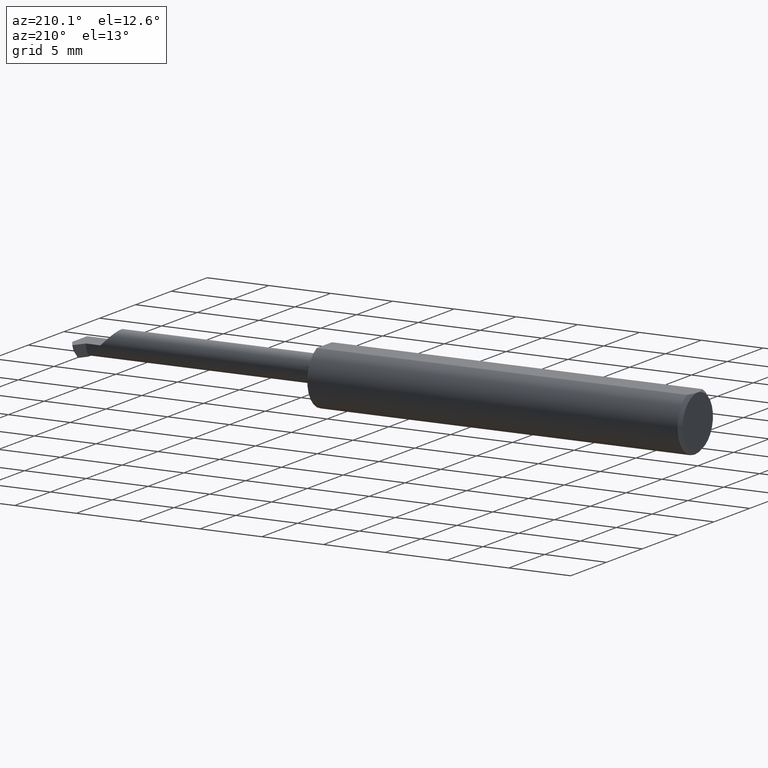
[diagram: clean part render]
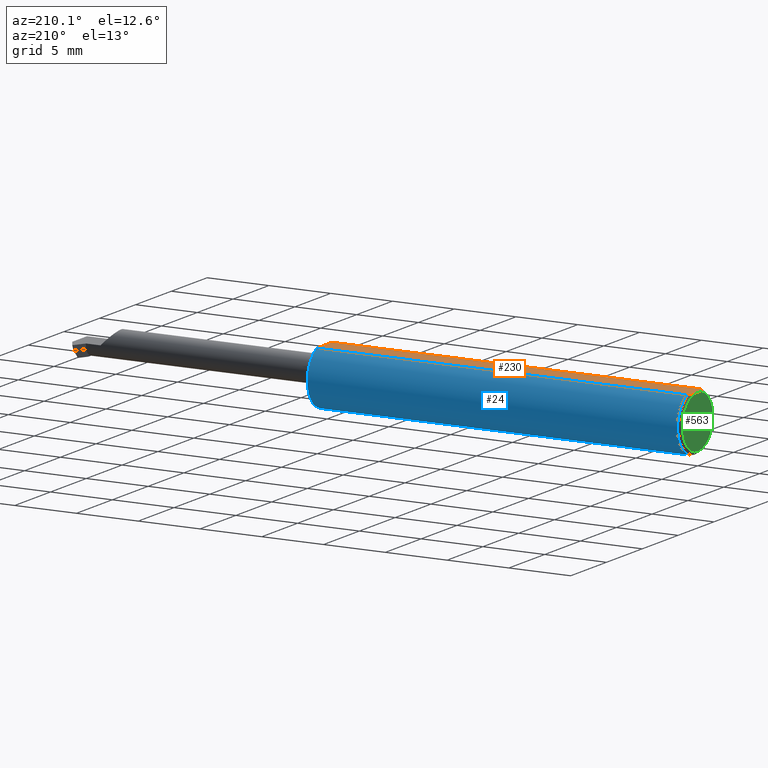
[diagram: same view with three faces highlighted in distinct colors, each labeled with its STEP entity id]
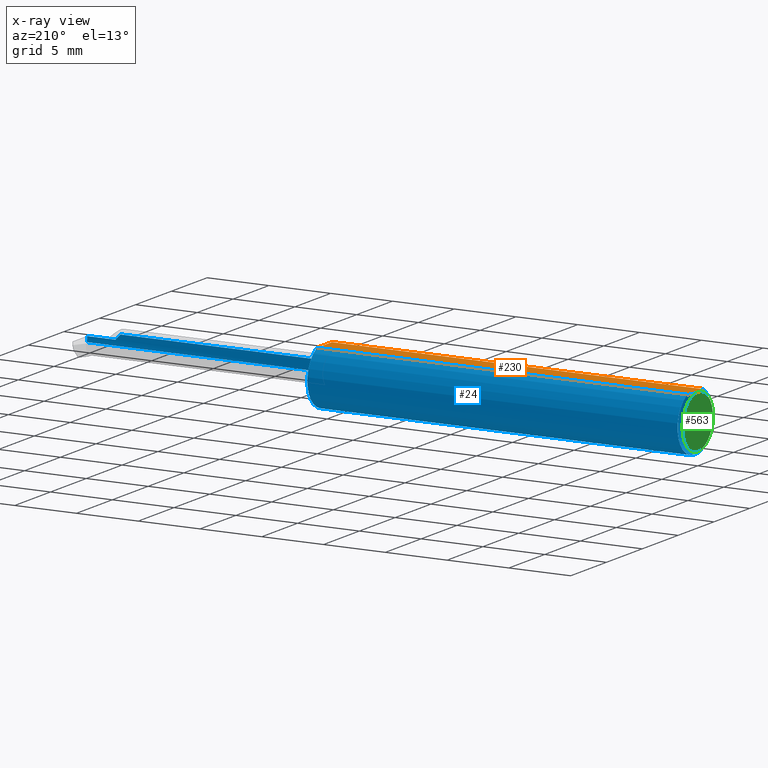
[diagram: x-ray of the same camera — body ghosted, the three highlighted faces saturated]
A machine part, auxiliary view with three faces highlighted in distinct colors.
The next image is the same camera in x-ray (body ghosted, the three faces saturated) — at least one of them is partly hidden behind the body in this view.
Their STEP definitions:

[orange] entity #230 — the highlighted planar face has unit normal (0, 0, 1).
#4 = VERTEX_POINT ( 'NONE', #185 ) ;
#28 = CARTESIAN_POINT ( 'NONE',  ( 0.000000000000000000, 0.000000000000000000, 0.08359999999999992437 ) ) ;
#58 = ORIENTED_EDGE ( 'NONE', *, *, #274, .F. ) ;
#80 = CARTESIAN_POINT ( 'NONE',  ( 0.009999999999999877043, 0.04209513035969860567, 0.08359999999999989662 ) ) ;
#103 = LINE ( 'NONE', #664, #374 ) ;
#107 = EDGE_CURVE ( 'NONE', #487, #604, #179, .T. ) ;
#150 = EDGE_CURVE ( 'NONE', #252, #604, #297, .T. ) ;
#179 = LINE ( 'NONE', #796, #507 ) ;
#185 = CARTESIAN_POINT ( 'NONE',  ( 1.189999999999999947, -0.04209513035969859179, 0.08359999999999992437 ) ) ;
#194 = ORIENTED_EDGE ( 'NONE', *, *, #376, .T. ) ;
#198 = PLANE ( 'NONE',  #657 ) ;
#202 = CARTESIAN_POINT ( 'NONE',  ( 0.000000000000000000, 0.000000000000000000, 0.08359999999999992437 ) ) ;
#209 = CARTESIAN_POINT ( 'NONE',  ( 0.009999999999999877043, 0.04209513035969860567, 0.08359999999999989662 ) ) ;
#221 = LINE ( 'NONE', #469, #621 ) ;
#230 = ADVANCED_FACE ( 'NONE', ( #316 ), #198, .T. ) ;
#252 = VERTEX_POINT ( 'NONE', #202 ) ;
#265 = CARTESIAN_POINT ( 'NONE',  ( 0.007036739039485557373, 0.03550621559607056860, 0.08359999999999992437 ) ) ;
#274 = EDGE_CURVE ( 'NONE', #792, #252, #326, .T. ) ;
#276 = CARTESIAN_POINT ( 'NONE',  ( 0.009999999999999877043, -0.04209513035969860567, 0.08359999999999989662 ) ) ;
#297 = B_SPLINE_CURVE_WITH_KNOTS ( 'NONE', 3,
 ( #700, #703, #323, #706, #265, #209 ),
 .UNSPECIFIED., .F., .F.,
 ( 4, 2, 4 ),
 ( 0.001744210492668867019, 0.002295110172257195866, 0.002846009851845524713 ),
 .UNSPECIFIED. ) ;
#316 = FACE_OUTER_BOUND ( 'NONE', #366, .T. ) ;
#323 = CARTESIAN_POINT ( 'NONE',  ( 0.0009807498324115896879, 0.01453516766257749275, 0.08359999999999992437 ) ) ;
#326 = B_SPLINE_CURVE_WITH_KNOTS ( 'NONE', 3,
 ( #718, #584, #720, #28 ),
 .UNSPECIFIED., .F., .F.,
 ( 4, 4 ),
 ( 0.0006429768761302141322, 0.001744210492668867019 ),
 .UNSPECIFIED. ) ;
#366 = EDGE_LOOP ( 'NONE', ( #194, #759, #475, #554, #58 ) ) ;
#374 = VECTOR ( 'NONE', #777, 39.37007874015748143 ) ;
#376 = EDGE_CURVE ( 'NONE', #792, #4, #221, .T. ) ;
#405 = DIRECTION ( 'NONE',  ( 1.000000000000000000, 0.000000000000000000, 0.000000000000000000 ) ) ;
#410 = EDGE_CURVE ( 'NONE', #4, #487, #103, .T. ) ;
#438 = CARTESIAN_POINT ( 'NONE',  ( 2.191425808082400728, 0.09360000000000001652, 0.08359999999999992437 ) ) ;
#469 = CARTESIAN_POINT ( 'NONE',  ( 0.000000000000000000, -0.04209513035969860567, 0.08359999999999989662 ) ) ;
#475 = ORIENTED_EDGE ( 'NONE', *, *, #107, .T. ) ;
#481 = DIRECTION ( 'NONE',  ( -1.000000000000000000, -0.000000000000000000, -0.000000000000000000 ) ) ;
#487 = VERTEX_POINT ( 'NONE', #610 ) ;
#504 = DIRECTION ( 'NONE',  ( 1.000000000000000000, 0.000000000000000000, -0.000000000000000000 ) ) ;
#507 = VECTOR ( 'NONE', #481, 39.37007874015748143 ) ;
#554 = ORIENTED_EDGE ( 'NONE', *, *, #150, .F. ) ;
#571 = DIRECTION ( 'NONE',  ( 0.000000000000000000, 0.000000000000000000, 1.000000000000000000 ) ) ;
#584 = CARTESIAN_POINT ( 'NONE',  ( 0.004072204388638599876, -0.02891446873729323561, 0.08359999999999992437 ) ) ;
#604 = VERTEX_POINT ( 'NONE', #80 ) ;
#610 = CARTESIAN_POINT ( 'NONE',  ( 1.189999999999999947, 0.04209513035969860567, 0.08359999999999989662 ) ) ;
#621 = VECTOR ( 'NONE', #405, 39.37007874015748143 ) ;
#657 = AXIS2_PLACEMENT_3D ( 'NONE', #438, #571, #504 ) ;
#664 = CARTESIAN_POINT ( 'NONE',  ( 1.189999999999999947, 0.09359999999999996101, 0.08359999999999992437 ) ) ;
#700 = CARTESIAN_POINT ( 'NONE',  ( 0.000000000000000000, 0.000000000000000000, 0.08359999999999992437 ) ) ;
#703 = CARTESIAN_POINT ( 'NONE',  ( -2.346264590017496984E-16, 0.007317304829308919449, 0.08359999999999995213 ) ) ;
#706 = CARTESIAN_POINT ( 'NONE',  ( 0.004492168231814527152, 0.02859366993844192698, 0.08359999999999991049 ) ) ;
#718 = CARTESIAN_POINT ( 'NONE',  ( 0.009999999999999877043, -0.04209513035969860567, 0.08359999999999989662 ) ) ;
#720 = CARTESIAN_POINT ( 'NONE',  ( -2.262195879907695790E-16, -0.01462709520273676109, 0.08359999999999992437 ) ) ;
#759 = ORIENTED_EDGE ( 'NONE', *, *, #410, .T. ) ;
#777 = DIRECTION ( 'NONE',  ( -5.600139467623446789E-17, 1.000000000000000000, 0.000000000000000000 ) ) ;
#792 = VERTEX_POINT ( 'NONE', #276 ) ;
#796 = CARTESIAN_POINT ( 'NONE',  ( 0.000000000000000000, 0.04209513035969860567, 0.08359999999999989662 ) ) ;

[blue] entity #24 — the highlighted cylindrical surface (edge-blend (fillet) strip) has radius 2.3774 mm, axis along (-1, -0, -0).
#4 = VERTEX_POINT ( 'NONE', #185 ) ;
#12 = ORIENTED_EDGE ( 'NONE', *, *, #284, .F. ) ;
#24 = ADVANCED_FACE ( 'NONE', ( #242 ), #122, .T. ) ;
#32 = CARTESIAN_POINT ( 'NONE',  ( 0.009999999999999877043, 0.000000000000000000, -0.09360000000000001652 ) ) ;
#33 = CARTESIAN_POINT ( 'NONE',  ( 2.999519565323725069E-32, -0.09359999999999998876, 2.449293598294709866E-16 ) ) ;
#37 = CARTESIAN_POINT ( 'NONE',  ( 1.189999999999999947, 0.000000000000000000, 0.000000000000000000 ) ) ;
#53 = CARTESIAN_POINT ( 'NONE',  ( 1.206246254951216068, -0.09087486346021456107, 0.02250610835616446287 ) ) ;
#59 = CARTESIAN_POINT ( 'NONE',  ( 1.204665360541867791, -0.09032542640524117428, -0.02464512177151387609 ) ) ;
#60 = AXIS2_PLACEMENT_3D ( 'NONE', #127, #799, #378 ) ;
#61 = CARTESIAN_POINT ( 'NONE',  ( 1.194091173271815132, -0.08239225417103622495, 0.04468952776629322998 ) ) ;
#75 = EDGE_CURVE ( 'NONE', #101, #439, #719, .T. ) ;
#80 = CARTESIAN_POINT ( 'NONE',  ( 0.009999999999999877043, 0.04209513035969860567, 0.08359999999999989662 ) ) ;
#97 = CARTESIAN_POINT ( 'NONE',  ( 0.009999999999999877043, 0.000000000000000000, 0.000000000000000000 ) ) ;
#101 = VERTEX_POINT ( 'NONE', #478 ) ;
#107 = EDGE_CURVE ( 'NONE', #487, #604, #179, .T. ) ;
#108 = DIRECTION ( 'NONE',  ( 1.000000000000000000, 5.600139467623446789E-17, 0.000000000000000000 ) ) ;
#111 = CARTESIAN_POINT ( 'NONE',  ( 1.893146287756234614, -0.09207014925373130376, 0.01685371224376530641 ) ) ;
#117 = CARTESIAN_POINT ( 'NONE',  ( 1.192599756579037162, -0.07984340602545507426, -0.04912629365152888783 ) ) ;
#122 = CYLINDRICAL_SURFACE ( 'NONE', #60, 0.09360000000000001652 ) ;
#127 = CARTESIAN_POINT ( 'NONE',  ( 0.000000000000000000, 0.000000000000000000, 0.000000000000000000 ) ) ;
#128 = CIRCLE ( 'NONE', #493, 0.09360000000000001652 ) ;
#129 = ORIENTED_EDGE ( 'NONE', *, *, #376, .F. ) ;
#130 = CIRCLE ( 'NONE', #269, 0.09360000000000001652 ) ;
#146 = ORIENTED_EDGE ( 'NONE', *, *, #485, .T. ) ;
#151 = DIRECTION ( 'NONE',  ( 1.000000000000000000, 5.600139467623446789E-17, 0.000000000000000000 ) ) ;
#156 = CARTESIAN_POINT ( 'NONE',  ( 1.583607695154586548, -0.09207014925373126213, 0.01685371224376544519 ) ) ;
#159 = CARTESIAN_POINT ( 'NONE',  ( 0.009999999999999877043, 0.000000000000000000, 0.000000000000000000 ) ) ;
#167 = CIRCLE ( 'NONE', #582, 0.09360000000000001652 ) ;
#176 = ORIENTED_EDGE ( 'NONE', *, *, #359, .F. ) ;
#179 = LINE ( 'NONE', #796, #507 ) ;
#185 = CARTESIAN_POINT ( 'NONE',  ( 1.189999999999999947, -0.04209513035969859179, 0.08359999999999992437 ) ) ;
#186 = VERTEX_POINT ( 'NONE', #213 ) ;
#188 = DIRECTION ( 'NONE',  ( 0.000000000000000000, 1.000000000000000000, 0.000000000000000000 ) ) ;
#189 = CARTESIAN_POINT ( 'NONE',  ( 1.212341178892590854, -0.09198016210675416526, 0.01735291095036402970 ) ) ;
#190 = ORIENTED_EDGE ( 'NONE', *, *, #358, .T. ) ;
#191 = CARTESIAN_POINT ( 'NONE',  ( 1.200331455114174828, -0.08838398833671959332, -0.03113919291468824138 ) ) ;
#199 = ORIENTED_EDGE ( 'NONE', *, *, #335, .T. ) ;
#207 = AXIS2_PLACEMENT_3D ( 'NONE', #159, #350, #775 ) ;
#213 = CARTESIAN_POINT ( 'NONE',  ( 2.000000000000000000, -0.09360000000000001652, 0.000000000000000000 ) ) ;
#221 = LINE ( 'NONE', #469, #621 ) ;
#242 = FACE_OUTER_BOUND ( 'NONE', #259, .T. ) ;
#246 = CARTESIAN_POINT ( 'NONE',  ( 1.190533642810113646, -0.07379783313327901995, 0.05781434694793449042 ) ) ;
#248 = CARTESIAN_POINT ( 'NONE',  ( 1.213627452150747077, -0.09207014925373124825, -0.01685371224376555968 ) ) ;
#259 = EDGE_LOOP ( 'NONE', ( #176, #373, #199, #146, #12, #733, #659, #129, #348, #190, #767, #564, #663 ) ) ;
#269 = AXIS2_PLACEMENT_3D ( 'NONE', #484, #108, #188 ) ;
#276 = CARTESIAN_POINT ( 'NONE',  ( 0.009999999999999877043, -0.04209513035969860567, 0.08359999999999989662 ) ) ;
#283 = LINE ( 'NONE', #156, #761 ) ;
#284 = EDGE_CURVE ( 'NONE', #439, #474, #283, .T. ) ;
#298 = CARTESIAN_POINT ( 'NONE',  ( 1.189999999999999947, -0.07042526556309521013, -0.06188820058547968295 ) ) ;
#299 = CARTESIAN_POINT ( 'NONE',  ( 1.189999999999999947, -0.06665037313432835286, 0.06571672360255648160 ) ) ;
#303 = CARTESIAN_POINT ( 'NONE',  ( 1.204680805881167549, -0.09033173497866232859, 0.02462299273440486311 ) ) ;
#307 = CARTESIAN_POINT ( 'NONE',  ( 1.214999999999999858, -0.09207014925373123437, 0.01685371224376555968 ) ) ;
#310 = CARTESIAN_POINT ( 'NONE',  ( 1.213637246768939582, -0.09207014925426143526, 0.01685371224086983782 ) ) ;
#328 = AXIS2_PLACEMENT_3D ( 'NONE', #97, #411, #649 ) ;
#333 = CARTESIAN_POINT ( 'NONE',  ( 1.189999999999999947, -0.06665037313432835286, -0.06571672360255648160 ) ) ;
#335 = EDGE_CURVE ( 'NONE', #186, #460, #532, .T. ) ;
#344 = CARTESIAN_POINT ( 'NONE',  ( 1.583607695154586548, -0.09207014925373126213, -0.01685371224376544519 ) ) ;
#348 = ORIENTED_EDGE ( 'NONE', *, *, #685, .T. ) ;
#350 = DIRECTION ( 'NONE',  ( 1.000000000000000000, 0.000000000000000000, 0.000000000000000000 ) ) ;
#357 = CARTESIAN_POINT ( 'NONE',  ( 1.214999999999999858, -0.09207014925373122050, -0.01685371224376561866 ) ) ;
#358 = EDGE_CURVE ( 'NONE', #783, #604, #551, .T. ) ;
#359 = EDGE_CURVE ( 'NONE', #770, #698, #716, .T. ) ;
#360 = CARTESIAN_POINT ( 'NONE',  ( 1.197959848388074677, -0.08665969772256711112, 0.03571742193933133414 ) ) ;
#364 = CARTESIAN_POINT ( 'NONE',  ( 1.200323772047401150, -0.08838176252376915565, 0.03114868400121304989 ) ) ;
#372 = CARTESIAN_POINT ( 'NONE',  ( 1.212324523699173762, -0.09197884972478911902, -0.01736005722475516058 ) ) ;
#373 = ORIENTED_EDGE ( 'NONE', *, *, #516, .T. ) ;
#376 = EDGE_CURVE ( 'NONE', #792, #4, #221, .T. ) ;
#378 = DIRECTION ( 'NONE',  ( 0.000000000000000000, 0.000000000000000000, 1.000000000000000000 ) ) ;
#405 = DIRECTION ( 'NONE',  ( 1.000000000000000000, 0.000000000000000000, 0.000000000000000000 ) ) ;
#411 = DIRECTION ( 'NONE',  ( 1.000000000000000000, 0.000000000000000000, 0.000000000000000000 ) ) ;
#419 = VERTEX_POINT ( 'NONE', #333 ) ;
#421 = CARTESIAN_POINT ( 'NONE',  ( 1.904343558428414962, -0.09360000000000001652, 0.005656441571585563502 ) ) ;
#425 = CARTESIAN_POINT ( 'NONE',  ( 1.189999999999999947, -0.06665037313432835286, -0.06571672360255648160 ) ) ;
#428 = CARTESIAN_POINT ( 'NONE',  ( 1.910000000000000142, -0.09360000000000005815, 1.102182119232617911E-17 ) ) ;
#429 = CARTESIAN_POINT ( 'NONE',  ( 1.214999999999999858, -0.09207014925373123437, 0.01685371224376555968 ) ) ;
#433 = DIRECTION ( 'NONE',  ( 0.000000000000000000, 0.000000000000000000, 1.000000000000000000 ) ) ;
#439 = VERTEX_POINT ( 'NONE', #307 ) ;
#460 = VERTEX_POINT ( 'NONE', #677 ) ;
#469 = CARTESIAN_POINT ( 'NONE',  ( 0.000000000000000000, -0.04209513035969860567, 0.08359999999999989662 ) ) ;
#473 = CARTESIAN_POINT ( 'NONE',  ( 1.210040276532751591, -0.09170035127622436222, -0.01877567467121163056 ) ) ;
#474 = VERTEX_POINT ( 'NONE', #488 ) ;
#478 = CARTESIAN_POINT ( 'NONE',  ( 1.189999999999999947, -0.06665037313432835286, 0.06571672360255648160 ) ) ;
#481 = DIRECTION ( 'NONE',  ( -1.000000000000000000, -0.000000000000000000, -0.000000000000000000 ) ) ;
#484 = CARTESIAN_POINT ( 'NONE',  ( 1.189999999999999947, 0.000000000000000000, 0.000000000000000000 ) ) ;
#485 = EDGE_CURVE ( 'NONE', #460, #474, #492, .T. ) ;
#486 = CARTESIAN_POINT ( 'NONE',  ( 1.210061339936166602, -0.09170362580915412953, 0.01875949767692831546 ) ) ;
#487 = VERTEX_POINT ( 'NONE', #610 ) ;
#488 = CARTESIAN_POINT ( 'NONE',  ( 1.893146287756234614, -0.09207014925373130376, 0.01685371224376530641 ) ) ;
#492 =( BOUNDED_CURVE ( )  B_SPLINE_CURVE ( 3, ( #428, #421, #603, #111 ),
 .UNSPECIFIED., .F., .T. ) 
 B_SPLINE_CURVE_WITH_KNOTS ( ( 4, 4 ),
 ( 4.712388980384689674, 4.893437473578368113 ),
 .UNSPECIFIED. ) 
 CURVE ( )  GEOMETRIC_REPRESENTATION_ITEM ( )  RATIONAL_B_SPLINE_CURVE ( ( 1.000000000000000000, 0.9972703184196847204, 0.9972703184196847204, 1.000000000000000000 ) ) 
 REPRESENTATION_ITEM ( '' )  );
#493 = AXIS2_PLACEMENT_3D ( 'NONE', #37, #151, #593 ) ;
#507 = VECTOR ( 'NONE', #481, 39.37007874015748143 ) ;
#509 = EDGE_CURVE ( 'NONE', #698, #419, #692, .T. ) ;
#510 = VECTOR ( 'NONE', #589, 39.37007874015748143 ) ;
#516 = EDGE_CURVE ( 'NONE', #770, #186, #167, .T. ) ;
#525 = EDGE_CURVE ( 'NONE', #4, #101, #130, .T. ) ;
#526 = CARTESIAN_POINT ( 'NONE',  ( 1.214999999999999858, -0.09207014925373122050, -0.01685371224376561866 ) ) ;
#527 = DIRECTION ( 'NONE',  ( -1.000000000000000000, -5.600139467623446789E-17, -0.000000000000000000 ) ) ;
#532 = LINE ( 'NONE', #33, #510 ) ;
#551 = CIRCLE ( 'NONE', #207, 0.09360000000000001652 ) ;
#552 = CARTESIAN_POINT ( 'NONE',  ( 1.194085356245838003, -0.08239036684830199075, -0.04469806793346439711 ) ) ;
#564 = ORIENTED_EDGE ( 'NONE', *, *, #722, .F. ) ;
#582 = AXIS2_PLACEMENT_3D ( 'NONE', #795, #744, #433 ) ;
#589 = DIRECTION ( 'NONE',  ( -1.000000000000000000, -0.000000000000000000, -0.000000000000000000 ) ) ;
#593 = DIRECTION ( 'NONE',  ( 0.000000000000000000, 1.000000000000000000, 0.000000000000000000 ) ) ;
#603 = CARTESIAN_POINT ( 'NONE',  ( 1.898710277283381265, -0.09308865393932079513, 0.01128972271661901269 ) ) ;
#604 = VERTEX_POINT ( 'NONE', #80 ) ;
#607 = CARTESIAN_POINT ( 'NONE',  ( 1.206246460913175778, -0.09087368479272689425, -0.02250960670043015283 ) ) ;
#610 = CARTESIAN_POINT ( 'NONE',  ( 1.189999999999999947, 0.04209513035969860567, 0.08359999999999989662 ) ) ;
#611 = CARTESIAN_POINT ( 'NONE',  ( 1.209051853270285859, -0.09151898401755916013, 0.01965164102476796987 ) ) ;
#614 = CARTESIAN_POINT ( 'NONE',  ( 1.192581066291113157, -0.07980979860428888406, 0.04918348233834489436 ) ) ;
#620 = CARTESIAN_POINT ( 'NONE',  ( 1.190550322316036080, -0.07386771902718260174, -0.05772280571319383935 ) ) ;
#621 = VECTOR ( 'NONE', #405, 39.37007874015748143 ) ;
#649 = DIRECTION ( 'NONE',  ( 0.000000000000000000, 0.000000000000000000, -1.000000000000000000 ) ) ;
#652 = CARTESIAN_POINT ( 'NONE',  ( 2.000000000000000000, -0.09207014925373108172, -0.01685371224376540009 ) ) ;
#659 = ORIENTED_EDGE ( 'NONE', *, *, #525, .F. ) ;
#663 = ORIENTED_EDGE ( 'NONE', *, *, #509, .F. ) ;
#671 = CARTESIAN_POINT ( 'NONE',  ( 1.209025502329857504, -0.09151353859653636735, -0.01967662315907458062 ) ) ;
#677 = CARTESIAN_POINT ( 'NONE',  ( 1.910000000000000142, -0.09360000000000005815, 1.102182119232617911E-17 ) ) ;
#685 = EDGE_CURVE ( 'NONE', #792, #783, #780, .T. ) ;
#692 = B_SPLINE_CURVE_WITH_KNOTS ( 'NONE', 3,
 ( #357, #248, #372, #473, #671, #607, #59, #191, #740, #552, #117, #620, #298, #425 ),
 .UNSPECIFIED., .F., .F.,
 ( 4, 2, 2, 2, 2, 2, 4 ),
 ( 1.967287740841111542E-07, 0.0001030870799334247990, 0.0002059774310927654718, 0.0004117581334114543256, 0.0008233195380488322499, 0.001234880942686209957, 0.001646442347323587990 ),
 .UNSPECIFIED. ) ;
#698 = VERTEX_POINT ( 'NONE', #526 ) ;
#716 = LINE ( 'NONE', #344, #745 ) ;
#719 = B_SPLINE_CURVE_WITH_KNOTS ( 'NONE', 3,
 ( #299, #741, #246, #614, #61, #360, #364, #303, #53, #611, #486, #189, #310, #429 ),
 .UNSPECIFIED., .F., .F.,
 ( 4, 2, 2, 2, 2, 2, 4 ),
 ( 4.596658918362292402E-05, 0.0004513928604954084390, 0.0008568191318071942657, 0.001262245403118980635, 0.001464958538774871000, 0.001566315106602816183, 0.001667671674430761149 ),
 .UNSPECIFIED. ) ;
#722 = EDGE_CURVE ( 'NONE', #419, #487, #128, .T. ) ;
#733 = ORIENTED_EDGE ( 'NONE', *, *, #75, .F. ) ;
#740 = CARTESIAN_POINT ( 'NONE',  ( 1.197994345349610024, -0.08669318782781061661, -0.03564240466963924936 ) ) ;
#741 = CARTESIAN_POINT ( 'NONE',  ( 1.189999999999998836, -0.07042168361208704652, 0.06189183342592220749 ) ) ;
#744 = DIRECTION ( 'NONE',  ( -1.000000000000000000, -0.000000000000000000, -0.000000000000000000 ) ) ;
#745 = VECTOR ( 'NONE', #527, 39.37007874015748143 ) ;
#761 = VECTOR ( 'NONE', #773, 39.37007874015748143 ) ;
#767 = ORIENTED_EDGE ( 'NONE', *, *, #107, .F. ) ;
#770 = VERTEX_POINT ( 'NONE', #652 ) ;
#773 = DIRECTION ( 'NONE',  ( 1.000000000000000000, 5.600139467623446789E-17, 0.000000000000000000 ) ) ;
#775 = DIRECTION ( 'NONE',  ( 0.000000000000000000, 0.000000000000000000, -1.000000000000000000 ) ) ;
#780 = CIRCLE ( 'NONE', #328, 0.09360000000000001652 ) ;
#783 = VERTEX_POINT ( 'NONE', #32 ) ;
#792 = VERTEX_POINT ( 'NONE', #276 ) ;
#795 = CARTESIAN_POINT ( 'NONE',  ( 2.000000000000000000, 0.000000000000000000, 0.000000000000000000 ) ) ;
#796 = CARTESIAN_POINT ( 'NONE',  ( 0.000000000000000000, 0.04209513035969860567, 0.08359999999999989662 ) ) ;
#799 = DIRECTION ( 'NONE',  ( -1.000000000000000000, -0.000000000000000000, -0.000000000000000000 ) ) ;

[green] entity #563 — the highlighted planar face has unit normal (1, 0, 0).
#27 = DIRECTION ( 'NONE',  ( 0.000000000000000000, 0.000000000000000000, -1.000000000000000000 ) ) ;
#91 = DIRECTION ( 'NONE',  ( 0.000000000000000000, 0.000000000000000000, -1.000000000000000000 ) ) ;
#139 = PLANE ( 'NONE',  #750 ) ;
#158 = CARTESIAN_POINT ( 'NONE',  ( 0.000000000000000000, 0.000000000000000000, 0.000000000000000000 ) ) ;
#160 = EDGE_CURVE ( 'NONE', #252, #586, #163, .T. ) ;
#163 = CIRCLE ( 'NONE', #602, 0.08360000000000017417 ) ;
#201 = CIRCLE ( 'NONE', #406, 0.08360000000000017417 ) ;
#202 = CARTESIAN_POINT ( 'NONE',  ( 0.000000000000000000, 0.000000000000000000, 0.08359999999999992437 ) ) ;
#203 = ORIENTED_EDGE ( 'NONE', *, *, #160, .T. ) ;
#252 = VERTEX_POINT ( 'NONE', #202 ) ;
#312 = FACE_OUTER_BOUND ( 'NONE', #497, .T. ) ;
#318 = DIRECTION ( 'NONE',  ( 1.000000000000000000, 0.000000000000000000, 0.000000000000000000 ) ) ;
#406 = AXIS2_PLACEMENT_3D ( 'NONE', #158, #595, #27 ) ;
#448 = CARTESIAN_POINT ( 'NONE',  ( 0.000000000000000000, 0.000000000000000000, 0.000000000000000000 ) ) ;
#497 = EDGE_LOOP ( 'NONE', ( #203, #755 ) ) ;
#506 = CARTESIAN_POINT ( 'NONE',  ( 0.000000000000000000, 0.000000000000000000, -0.08360000000000017417 ) ) ;
#563 = ADVANCED_FACE ( 'NONE', ( #312 ), #139, .F. ) ;
#586 = VERTEX_POINT ( 'NONE', #506 ) ;
#595 = DIRECTION ( 'NONE',  ( -1.000000000000000000, -0.000000000000000000, -0.000000000000000000 ) ) ;
#602 = AXIS2_PLACEMENT_3D ( 'NONE', #448, #637, #91 ) ;
#633 = DIRECTION ( 'NONE',  ( 0.000000000000000000, 0.000000000000000000, -1.000000000000000000 ) ) ;
#636 = CARTESIAN_POINT ( 'NONE',  ( 0.000000000000000000, 0.000000000000000000, 0.000000000000000000 ) ) ;
#637 = DIRECTION ( 'NONE',  ( -1.000000000000000000, -0.000000000000000000, -0.000000000000000000 ) ) ;
#750 = AXIS2_PLACEMENT_3D ( 'NONE', #636, #318, #633 ) ;
#755 = ORIENTED_EDGE ( 'NONE', *, *, #766, .T. ) ;
#766 = EDGE_CURVE ( 'NONE', #586, #252, #201, .T. ) ;